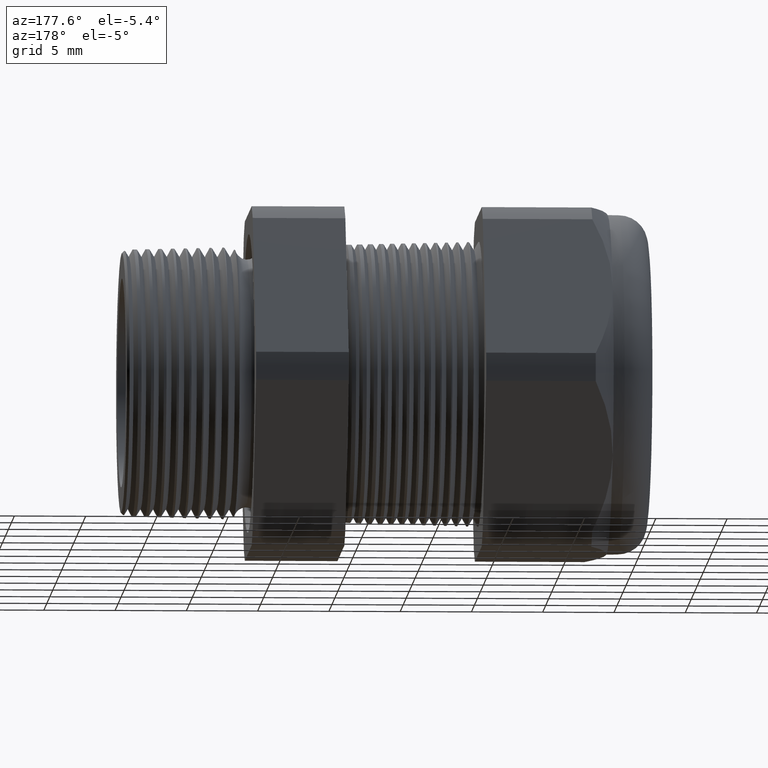
[diagram: clean part render]
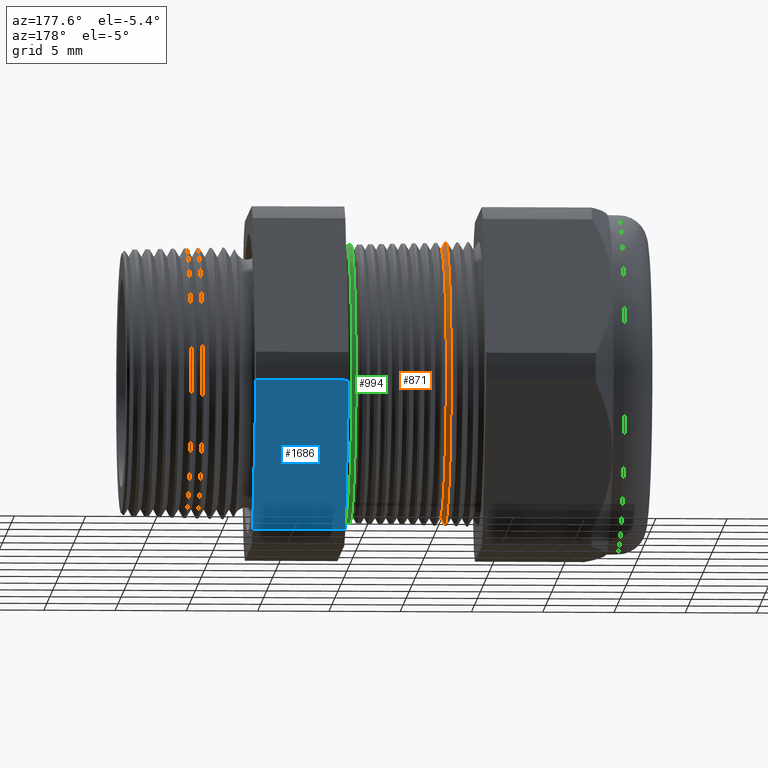
[diagram: same view with three faces highlighted in distinct colors, each labeled with its STEP entity id]
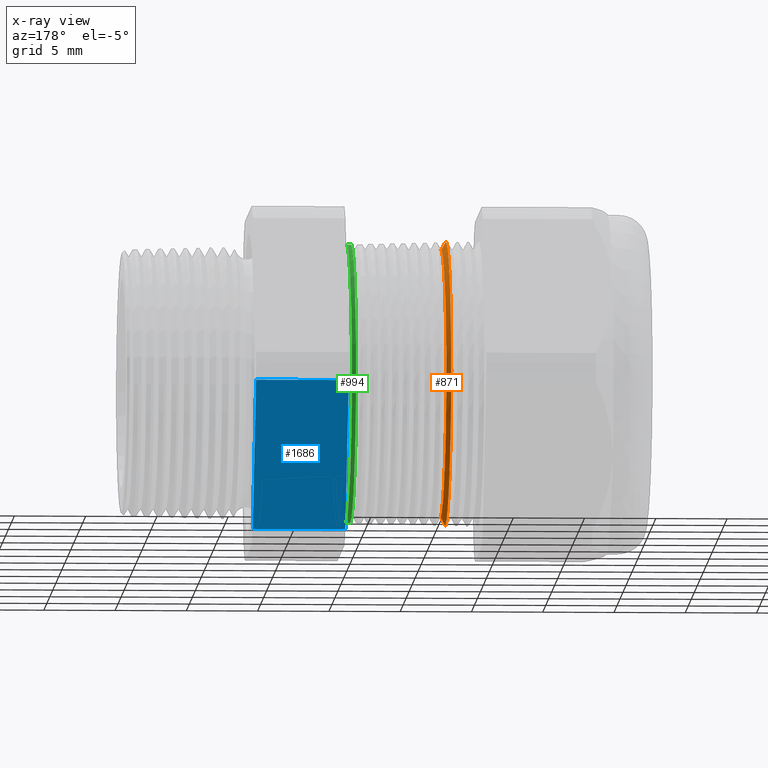
[diagram: x-ray of the same camera — body ghosted, the three highlighted faces saturated]
A machine part, auxiliary view with three faces highlighted in distinct colors.
The next image is the same camera in x-ray (body ghosted, the three faces saturated) — at least one of them is partly hidden behind the body in this view.
Their STEP definitions:

[orange] entity #871 — the highlighted conical surface has half-angle 61.5 deg.
#790 = EDGE_LOOP ( 'NONE', ( #843, #844, #847, #850 ) ) ;
#843 = ORIENTED_EDGE ( 'NONE', *, *, #860, .F. ) ;
#844 = ORIENTED_EDGE ( 'NONE', *, *, #845, .T. ) ;
#845 = EDGE_CURVE ( 'NONE', #861, #846, #3257, .T. ) ;
#846 = VERTEX_POINT ( 'NONE', #3253 ) ;
#847 = ORIENTED_EDGE ( 'NONE', *, *, #848, .T. ) ;
#848 = EDGE_CURVE ( 'NONE', #846, #849, #3252, .T. ) ;
#849 = VERTEX_POINT ( 'NONE', #3247 ) ;
#850 = ORIENTED_EDGE ( 'NONE', *, *, #851, .F. ) ;
#851 = EDGE_CURVE ( 'NONE', #862, #849, #3246, .T. ) ;
#860 = EDGE_CURVE ( 'NONE', #861, #862, #3291, .T. ) ;
#861 = VERTEX_POINT ( 'NONE', #3286 ) ;
#862 = VERTEX_POINT ( 'NONE', #3285 ) ;
#871 = ADVANCED_FACE ( 'NONE', ( #3269 ), #3268, .T. ) ;
#3243 = DIRECTION ( 'NONE',  ( -0.4771587602596201200, 0.0000000000000000000, 0.8788171126619589400 ) ) ;
#3244 = VECTOR ( 'NONE', #3243, 39.37007874015748100 ) ;
#3245 = CARTESIAN_POINT ( 'NONE',  ( -0.8554330708661418400, 0.0000000000000000000, 0.3950000000000000200 ) ) ;
#3246 = LINE ( 'NONE', #3245, #3244 ) ;
#3247 = CARTESIAN_POINT ( 'NONE',  ( -0.8541350137730541200, 0.0000000000000000000, 0.3926092762375419400 ) ) ;
#3248 = DIRECTION ( 'NONE',  ( 0.0000000000000000000, 0.0000000000000000000, 1.000000000000000000 ) ) ;
#3249 = DIRECTION ( 'NONE',  ( 1.000000000000000000, 0.0000000000000000000, 0.0000000000000000000 ) ) ;
#3250 = CARTESIAN_POINT ( 'NONE',  ( -0.8541350137730541200, 0.0000000000000000000, 0.0000000000000000000 ) ) ;
#3251 = AXIS2_PLACEMENT_3D ( 'NONE', #3250, #3249, #3248 ) ;
#3252 = CIRCLE ( 'NONE', #3251, 0.3926092762375419400 ) ;
#3253 = CARTESIAN_POINT ( 'NONE',  ( -0.8541350137730541200, 4.808620180705062400E-017, -0.3926092762375419400 ) ) ;
#3254 = DIRECTION ( 'NONE',  ( -0.4771587602596201200, 1.076240564057387000E-016, -0.8788171126619589400 ) ) ;
#3255 = VECTOR ( 'NONE', #3254, 39.37007874015748100 ) ;
#3256 = CARTESIAN_POINT ( 'NONE',  ( -0.8554330708661418400, 4.837354856632045600E-017, -0.3950000000000000200 ) ) ;
#3257 = LINE ( 'NONE', #3256, #3255 ) ;
#3264 = DIRECTION ( 'NONE',  ( 0.0000000000000000000, 0.0000000000000000000, 1.000000000000000000 ) ) ;
#3265 = DIRECTION ( 'NONE',  ( -1.000000000000000000, 0.0000000000000000000, 0.0000000000000000000 ) ) ;
#3266 = CARTESIAN_POINT ( 'NONE',  ( -0.8554330708661418400, 0.0000000000000000000, 0.0000000000000000000 ) ) ;
#3267 = AXIS2_PLACEMENT_3D ( 'NONE', #3266, #3265, #3264 ) ;
#3268 = CONICAL_SURFACE ( 'NONE', #3267, 0.3950000000000000200, 1.073377489976499400 ) ;
#3269 = FACE_OUTER_BOUND ( 'NONE', #790, .T. ) ;
#3285 = CARTESIAN_POINT ( 'NONE',  ( -0.8416586839320378000, 0.0000000000000000000, 0.3696307351718083900 ) ) ;
#3286 = CARTESIAN_POINT ( 'NONE',  ( -0.8416586839320378000, 4.667373950772513900E-017, -0.3696307351718083900 ) ) ;
#3287 = DIRECTION ( 'NONE',  ( 0.0000000000000000000, 0.0000000000000000000, -1.000000000000000000 ) ) ;
#3288 = DIRECTION ( 'NONE',  ( 1.000000000000000000, 0.0000000000000000000, 0.0000000000000000000 ) ) ;
#3289 = CARTESIAN_POINT ( 'NONE',  ( -0.8416586839320378000, 0.0000000000000000000, 0.0000000000000000000 ) ) ;
#3290 = AXIS2_PLACEMENT_3D ( 'NONE', #3289, #3288, #3287 ) ;
#3291 = CIRCLE ( 'NONE', #3290, 0.3696307351718083900 ) ;

[blue] entity #1686 — the highlighted planar face has unit normal (0, 0.866, -0.5).
#1436 = EDGE_CURVE ( 'NONE', #1437, #1438, #4434, .T. ) ;
#1437 = VERTEX_POINT ( 'NONE', #4425 ) ;
#1438 = VERTEX_POINT ( 'NONE', #4424 ) ;
#1513 = VERTEX_POINT ( 'NONE', #4590 ) ;
#1592 = VERTEX_POINT ( 'NONE', #4705 ) ;
#1594 = EDGE_CURVE ( 'NONE', #1592, #1513, #4704, .T. ) ;
#1606 = EDGE_CURVE ( 'NONE', #1438, #1592, #4756, .T. ) ;
#1684 = EDGE_CURVE ( 'NONE', #1437, #1513, #4845, .T. ) ;
#1686 = ADVANCED_FACE ( 'NONE', ( #4838 ), #4837, .T. ) ;
#1687 = EDGE_LOOP ( 'NONE', ( #1688, #1689, #1690, #1691 ) ) ;
#1688 = ORIENTED_EDGE ( 'NONE', *, *, #1684, .T. ) ;
#1689 = ORIENTED_EDGE ( 'NONE', *, *, #1594, .F. ) ;
#1690 = ORIENTED_EDGE ( 'NONE', *, *, #1606, .F. ) ;
#1691 = ORIENTED_EDGE ( 'NONE', *, *, #1436, .F. ) ;
#4424 = CARTESIAN_POINT ( 'NONE',  ( -0.3100000000000000000, 0.5202473208008778800, -0.03890520787129497800 ) ) ;
#4425 = CARTESIAN_POINT ( 'NONE',  ( -0.3100000000000000000, 0.2938165587564948700, -0.4310947921287048800 ) ) ;
#4426 = DIRECTION ( 'NONE',  ( 0.0000000000000000000, 0.4999999999999998300, 0.8660254037844388200 ) ) ;
#4427 = VECTOR ( 'NONE', #4426, 39.37007874015748100 ) ;
#4428 = CARTESIAN_POINT ( 'NONE',  ( -0.3100000000000000000, 0.6420319397786862200, 0.1720319397786860500 ) ) ;
#4434 = LINE ( 'NONE', #4428, #4427 ) ;
#4590 = CARTESIAN_POINT ( 'NONE',  ( -0.5659055118110234400, 0.2938165587564949800, -0.4310947921287048800 ) ) ;
#4701 = DIRECTION ( 'NONE',  ( 0.0000000000000000000, -0.4999999999999998300, -0.8660254037844388200 ) ) ;
#4702 = VECTOR ( 'NONE', #4701, 39.37007874015748100 ) ;
#4703 = CARTESIAN_POINT ( 'NONE',  ( -0.5659055118110234400, 0.6420319397786862200, 0.1720319397786860500 ) ) ;
#4704 = LINE ( 'NONE', #4703, #4702 ) ;
#4705 = CARTESIAN_POINT ( 'NONE',  ( -0.5659055118110234400, 0.5202473208008777700, -0.03890520787129496400 ) ) ;
#4753 = DIRECTION ( 'NONE',  ( -1.000000000000000000, 0.0000000000000000000, 0.0000000000000000000 ) ) ;
#4754 = VECTOR ( 'NONE', #4753, 39.37007874015748100 ) ;
#4755 = CARTESIAN_POINT ( 'NONE',  ( 0.03999999999999984800, 0.5202473208008777700, -0.03890520787129496400 ) ) ;
#4756 = LINE ( 'NONE', #4755, #4754 ) ;
#4833 = DIRECTION ( 'NONE',  ( 0.0000000000000000000, 0.4999999999999998300, 0.8660254037844388200 ) ) ;
#4834 = DIRECTION ( 'NONE',  ( 0.0000000000000000000, 0.8660254037844388200, -0.4999999999999998300 ) ) ;
#4835 = CARTESIAN_POINT ( 'NONE',  ( 0.03999999999999984800, 0.5202473208008777700, -0.03890520787129496400 ) ) ;
#4836 = AXIS2_PLACEMENT_3D ( 'NONE', #4835, #4834, #4833 ) ;
#4837 = PLANE ( 'NONE',  #4836 ) ;
#4838 = FACE_OUTER_BOUND ( 'NONE', #1687, .T. ) ;
#4839 = DIRECTION ( 'NONE',  ( -1.000000000000000000, 0.0000000000000000000, 0.0000000000000000000 ) ) ;
#4840 = VECTOR ( 'NONE', #4839, 39.37007874015748100 ) ;
#4841 = CARTESIAN_POINT ( 'NONE',  ( 0.03999999999999984800, 0.2938165587564948700, -0.4310947921287048800 ) ) ;
#4845 = LINE ( 'NONE', #4841, #4840 ) ;

[green] entity #994 — the highlighted conical surface has half-angle 1.5 deg.
#75 = VERTEX_POINT ( 'NONE', #1924 ) ;
#79 = VERTEX_POINT ( 'NONE', #1974 ) ;
#125 = EDGE_CURVE ( 'NONE', #79, #75, #2024, .T. ) ;
#429 = EDGE_CURVE ( 'NONE', #441, #430, #2646, .T. ) ;
#430 = VERTEX_POINT ( 'NONE', #2642 ) ;
#441 = VERTEX_POINT ( 'NONE', #2685 ) ;
#913 = EDGE_LOOP ( 'NONE', ( #914, #915, #917, #918 ) ) ;
#914 = ORIENTED_EDGE ( 'NONE', *, *, #429, .F. ) ;
#915 = ORIENTED_EDGE ( 'NONE', *, *, #916, .T. ) ;
#916 = EDGE_CURVE ( 'NONE', #441, #75, #3370, .T. ) ;
#917 = ORIENTED_EDGE ( 'NONE', *, *, #125, .F. ) ;
#918 = ORIENTED_EDGE ( 'NONE', *, *, #919, .F. ) ;
#919 = EDGE_CURVE ( 'NONE', #430, #79, #3366, .T. ) ;
#994 = ADVANCED_FACE ( 'NONE', ( #3529 ), #3528, .T. ) ;
#1924 = CARTESIAN_POINT ( 'NONE',  ( -0.5917872457881848700, 4.723945927419978800E-017, -0.3857394581612408300 ) ) ;
#1974 = CARTESIAN_POINT ( 'NONE',  ( -0.5917872457881848700, 0.0000000000000000000, 0.3857394581612408300 ) ) ;
#2021 = DIRECTION ( 'NONE',  ( 0.0000000000000000000, 0.0000000000000000000, -1.000000000000000000 ) ) ;
#2022 = DIRECTION ( 'NONE',  ( -1.000000000000000000, 0.0000000000000000000, 0.0000000000000000000 ) ) ;
#2023 = AXIS2_PLACEMENT_3D ( 'NONE', #2029, #2022, #2021 ) ;
#2024 = CIRCLE ( 'NONE', #2023, 0.3857394581612408300 ) ;
#2029 = CARTESIAN_POINT ( 'NONE',  ( -0.5917872457881848700, 0.0000000000000000000, 0.0000000000000000000 ) ) ;
#2642 = CARTESIAN_POINT ( 'NONE',  ( -0.5802408424937909300, 0.0000000000000000000, 0.3854371049501677000 ) ) ;
#2643 = DIRECTION ( 'NONE',  ( 0.0000000000000000000, 0.0000000000000000000, 1.000000000000000000 ) ) ;
#2644 = DIRECTION ( 'NONE',  ( 1.000000000000000000, 0.0000000000000000000, 0.0000000000000000000 ) ) ;
#2645 = AXIS2_PLACEMENT_3D ( 'NONE', #2650, #2644, #2643 ) ;
#2646 = CIRCLE ( 'NONE', #2645, 0.3854371049501677000 ) ;
#2650 = CARTESIAN_POINT ( 'NONE',  ( -0.5802408424937909300, 0.0000000000000000000, 0.0000000000000000000 ) ) ;
#2685 = CARTESIAN_POINT ( 'NONE',  ( -0.5802408424937909300, 4.722094547959215600E-017, -0.3854371049501677000 ) ) ;
#3363 = DIRECTION ( 'NONE',  ( -0.9996573249755573700, 0.0000000000000000000, 0.02617694830786596000 ) ) ;
#3364 = VECTOR ( 'NONE', #3363, 39.37007874015748100 ) ;
#3365 = CARTESIAN_POINT ( 'NONE',  ( -0.5659055118110234400, 0.0000000000000000000, 0.3850617211052404500 ) ) ;
#3366 = LINE ( 'NONE', #3365, #3364 ) ;
#3367 = DIRECTION ( 'NONE',  ( -0.9996573249755573700, 3.205751595667377300E-018, -0.02617694830786596000 ) ) ;
#3368 = VECTOR ( 'NONE', #3367, 39.37007874015748100 ) ;
#3369 = CARTESIAN_POINT ( 'NONE',  ( -0.5659055118110234400, 4.715646042257035500E-017, -0.3850617211052404500 ) ) ;
#3370 = LINE ( 'NONE', #3369, #3368 ) ;
#3523 = DIRECTION ( 'NONE',  ( 0.0000000000000000000, 0.0000000000000000000, 1.000000000000000000 ) ) ;
#3524 = DIRECTION ( 'NONE',  ( -1.000000000000000000, 0.0000000000000000000, 0.0000000000000000000 ) ) ;
#3525 = CARTESIAN_POINT ( 'NONE',  ( -0.5659055118110234400, 0.0000000000000000000, 0.0000000000000000000 ) ) ;
#3526 = AXIS2_PLACEMENT_3D ( 'NONE', #3525, #3524, #3523 ) ;
#3528 = CONICAL_SURFACE ( 'NONE', #3526, 0.3850617211052404500, 0.02617993877990774900 ) ;
#3529 = FACE_OUTER_BOUND ( 'NONE', #913, .T. ) ;